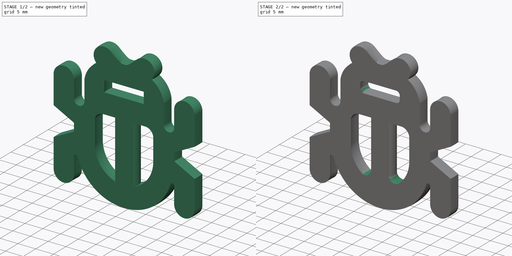
[diagram: build sequence overview — one tinted view per stage of 2, left to right]
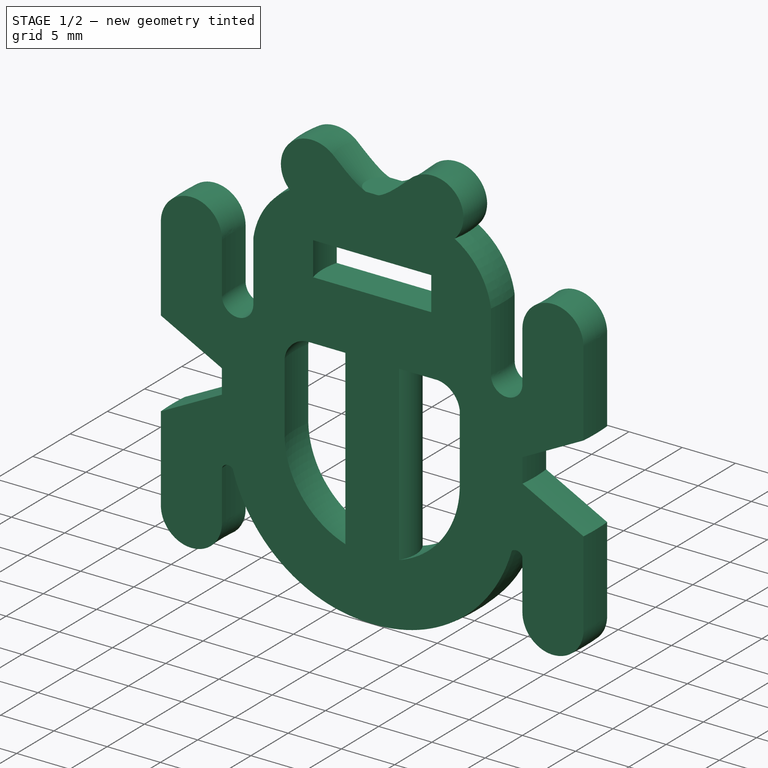
[diagram: stage 1 of 2 — iso view after this stage's code; geometry added in this stage tinted green]
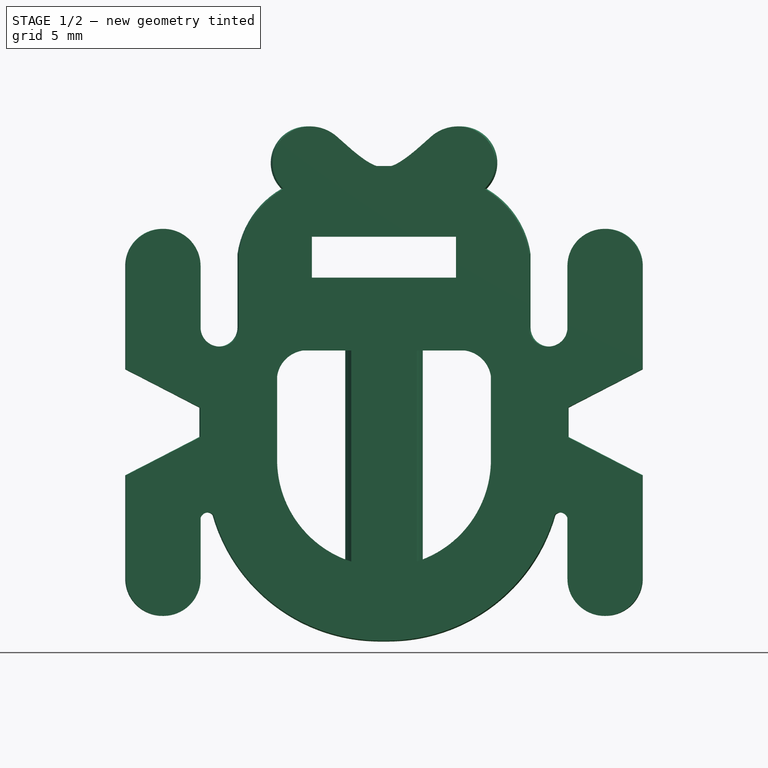
[diagram: stage 1 of 2 — front view after this stage's code; geometry added in this stage tinted green]
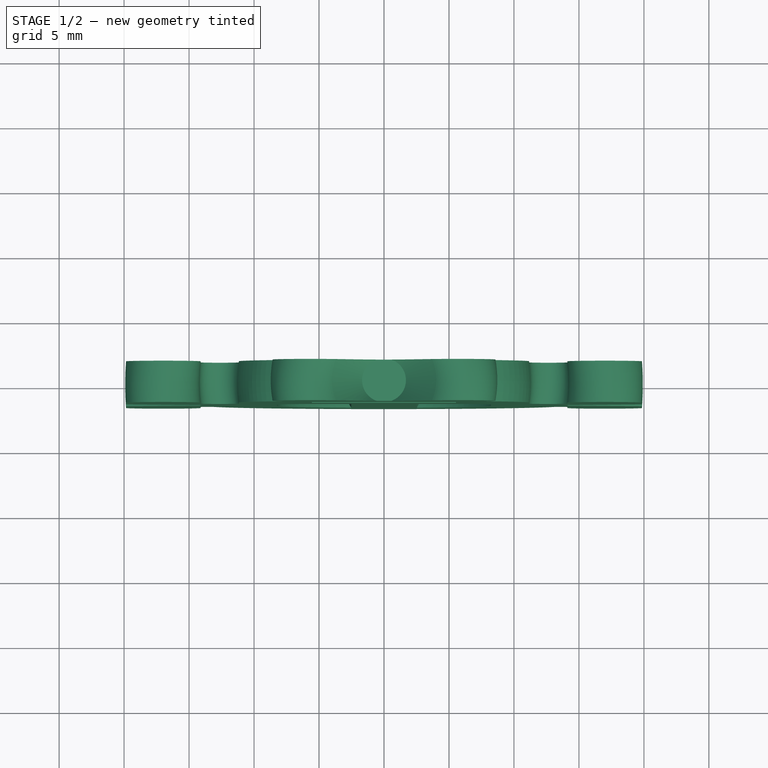
[diagram: stage 1 of 2 — top view after this stage's code; geometry added in this stage tinted green]
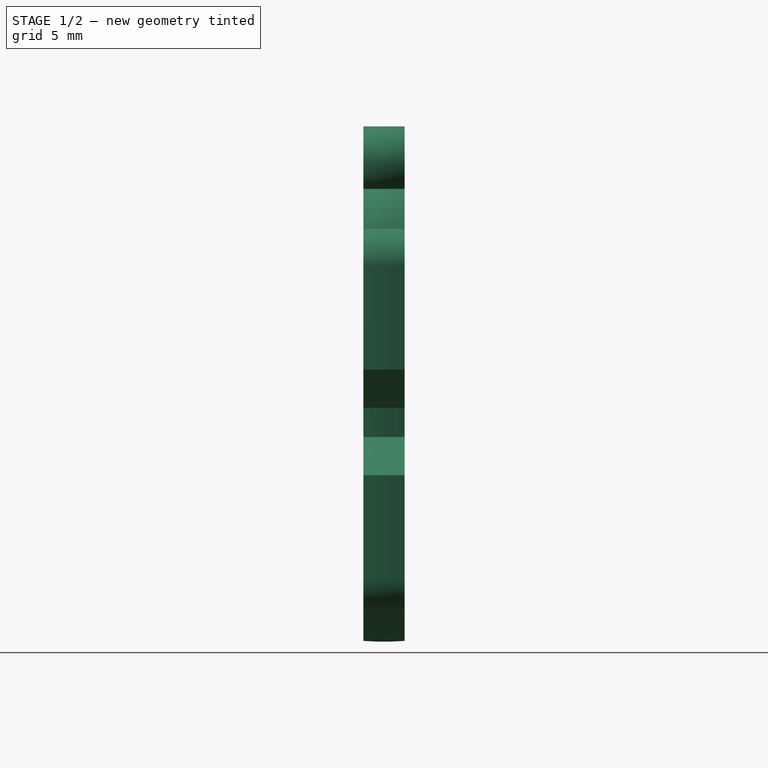
[diagram: stage 1 of 2 — right view after this stage's code; geometry added in this stage tinted green]
FCSTD DOCUMENT  (FreeCAD 0.20R27518 (Git))
Label: Software_Template
License: All rights reserved
LicenseURL: http://en.wikipedia.org/wiki/All_rights_reserved
objects: Sketcher::SketchObject×2, PartDesign::Fillet×2, TechDraw::DrawSVGTemplate×1, Image::ImagePlane×1, PartDesign::Revolution×1, PartDesign::Pocket×1, PartDesign::Body×1, TechDraw::DrawProjGroupItem×1, TechDraw::DrawProjGroup×1, TechDraw::DrawPage×1
note: 11 computed .brp shape members not serialized (recipe doc carries the construction recipe); baked Part::Feature solids carry a one-line shape summary decoded from their .brp

FEATURE [TechDraw::DrawSVGTemplate] Template
  EditableTexts = Designed_by_Name=Design by Joe; Drawing_number=21.12-7-gd9da197b; FC-Date=Feb 2022; FC-SC=1:1; FC-SH=1 of 1; FC-Title=Software Team Patch; Subtitle=Tidal Force Robotics; Weight=0.01
  Height = 210
  Orientation = 1
  Width = 297
FEATURE [Image::ImagePlane] ImagePlane
  Placement = pos=(0,0,0) rot=(-1,0,0;4.71239rad)
  XSize = 90.2998
  YSize = 90.2998
FEATURE [Sketcher::SketchObject] Sketch
  FullyConstrained = false
  MapMode = 5
  Placement = pos=(0,0,0) rot=(1,0,0;1.5708rad)
  Support = -> [XZ_Plane]
  sketch-geometry (28):
    g0: ArcOfCircle CenterX=6.06459 CenterY=0.44352 CenterZ=0 NormalX=0 NormalY=0 NormalZ=1 AngleXU=0 Radius=2.33175 StartAngle=0.139087 EndAngle=1.42458
    g1: ArcOfCircle CenterX=0 CenterY=-5.65904 CenterZ=0 NormalX=0 NormalY=0 NormalZ=1 AngleXU=0 Radius=8.37863 StartAngle=5.07587 EndAngle=6.24929
    g2: LineSegment StartX=8.37382 StartY=0.766791 StartZ=0 EndX=8.37382 EndY=-5.943 EndZ=0
    g3: LineSegment StartX=6.40431 StartY=2.75039 StartZ=0 EndX=2.97889 EndY=2.75039 EndZ=0
    g4: LineSegment StartX=2.97889 StartY=2.75039 StartZ=0 EndX=2.97889 EndY=-13.4902 EndZ=0
    g5: ArcOfCircle CenterX=5.9021 CenterY=17.1751 CenterZ=0 NormalX=0 NormalY=0 NormalZ=1 AngleXU=0 Radius=2.81597 StartAngle=5.50028 EndAngle=8.5819
    g6: ArcOfCircle CenterX=4.3918 CenterY=9.18333 CenterZ=0 NormalX=0 NormalY=0 NormalZ=1 AngleXU=0 Radius=6.95424 StartAngle=0.141717 EndAngle=1.04232
    g7: ArcOfCircle CenterX=17.0579 CenterY=9.25429 CenterZ=0 NormalX=0 NormalY=0 NormalZ=1 AngleXU=0 Radius=2.8546 StartAngle=3e-16 EndAngle=3.14159
    g8: ArcOfCircle CenterX=17.0579 CenterY=-14.8224 CenterZ=0 NormalX=0 NormalY=0 NormalZ=1 AngleXU=0 Radius=2.8546 StartAngle=3.14159 EndAngle=6.28319
    g9: ArcOfCircle CenterX=0.318846 CenterY=-6.26215 CenterZ=0 NormalX=0 NormalY=0 NormalZ=1 AngleXU=0 Radius=13.3884 StartAngle=4.68857 EndAngle=6.00645
    g10: LineSegment StartX=1.68761 StartY=16.9456 StartZ=0 EndX=4.0286 EndY=19.2774 EndZ=0
    g11: GeomPoint X=1.68761 Y=16.9456 Z=0
    g12: LineSegment StartX=0 StartY=16.9456 StartZ=0 EndX=1.68761 EndY=16.9456 EndZ=0
    g13: LineSegment StartX=0 StartY=16.9456 StartZ=0 EndX=7e-16 EndY=11.5042 EndZ=0
    g14: ArcOfCircle CenterX=13.6367 CenterY=-10.3132 CenterZ=0 NormalX=0 NormalY=0 NormalZ=1 AngleXU=0 Radius=0.589195 StartAngle=0.277634 EndAngle=2.41107
    g15: LineSegment StartX=14.2033 StartY=-10.1517 StartZ=0 EndX=14.2033 EndY=-14.8224 EndZ=0
    g16: LineSegment StartX=19.9125 StartY=-14.8224 StartZ=0 EndX=19.9125 EndY=-6.85076 EndZ=0
    g17: LineSegment StartX=14.207 StartY=-3.90445 StartZ=0 EndX=19.9125 EndY=-6.85076 EndZ=0
    g18: LineSegment StartX=14.207 StartY=-3.90445 StartZ=0 EndX=14.207 EndY=-1.65873 EndZ=0
    g19: LineSegment StartX=14.207 StartY=-1.65873 StartZ=0 EndX=19.9125 EndY=1.28757 EndZ=0
    g20: LineSegment StartX=19.9125 StartY=1.28757 StartZ=0 EndX=19.9125 EndY=9.25429 EndZ=0
    g21: LineSegment StartX=14.2033 StartY=9.25429 StartZ=0 EndX=14.2033 EndY=4.51501 EndZ=0
    g22: LineSegment StartX=11.2763 StartY=10.1656 StartZ=0 EndX=11.2763 EndY=4.51501 EndZ=0
    g23: LineSegment StartX=7e-16 StartY=11.5042 StartZ=0 EndX=5.76773 EndY=11.5042 EndZ=0
    g24: LineSegment StartX=5.76773 StartY=11.5042 StartZ=0 EndX=5.76773 EndY=8.35728 EndZ=0
    g25: LineSegment StartX=5.76773 StartY=8.35728 StartZ=0 EndX=9e-16 EndY=8.35728 EndZ=0
    g26: LineSegment StartX=1.2e-15 StartY=8.35728 StartZ=0 EndX=4e-15 EndY=-19.6467 EndZ=0
    g27: ArcOfCircle CenterX=12.7398 CenterY=4.51501 CenterZ=0 NormalX=0 NormalY=0 NormalZ=1 AngleXU=0 Radius=1.46349 StartAngle=3.14159 EndAngle=6.28319
  constraints (63):
    c: DistanceX(g0) = 6.40431
    c: DistanceY(g0) = 2.75039
    c: DistanceY(g0) = 0.766791
    c: DistanceY(g1) = -5.943
    c: DistanceX(g1) = 2.97889
    c: DistanceY(g1) = -13.4902
    c: Coincident(g3,g0)
    c: Horizontal(g3)
    c: Coincident(g4,g3)
    c: Coincident(g4,g1)
    c: Vertical(g4)
    c: Coincident(g0,g2)
    c: Vertical(g2)
    c: Coincident(g2,g1)
    c: DistanceX(g0) = 8.37382
    c: DistanceX(g0) = 6.06459
    c: PointOnObject(g1,g-2)
    c: Coincident(g6,g5)
    c: Coincident(g10,g5)
    c: Coincident(g11,g10)
    c: PointOnObject(g12,g-2)
    c: Coincident(g12,g10)
    c: Horizontal(g12)
    c: Coincident(g13,g12)
    c: PointOnObject(g26,g-2)
    c: Coincident(g9,g26)
    c: DistanceY(g9) = -19.6467
    c: DistanceX(g9) = 13.1978
    c: DistanceY(g9) = -9.92007
    c: Coincident(g14,g9)
    c: Coincident(g15,g14)
    c: Vertical(g15)
    c: DistanceX(g8) = 14.2033
    c: DistanceY(g8) = -14.8224
    c: Tangent(g15,g8) = -1.5708
    c: Vertical(g16)
    c: Coincident(g17,g16)
    c: Tangent(g16,g8) = -1.5708
    c: Coincident(g18,g17)
    c: Vertical(g18)
    c: Coincident(g19,g18)
    c: Coincident(g20,g19)
    c: Equal(g17,g19)
    c: Tangent(g16,g20)
    c: Tangent(g20,g7) = -1.5708
    c: Tangent(g21,g7) = -1.5708
    c: Tangent(g21,g15)
    c: Coincident(g22,g6)
    c: Vertical(g22)
    c: DistanceX(g6) = 11.2763
    c: DistanceY(g6) = 10.1656
    c: DistanceX(g6) = 4.3918
    c: DistanceY(g6) = 9.18333
    c: Horizontal(g23)
    c: Coincident(g24,g23)
    c: Vertical(g24)
    c: Coincident(g25,g24)
    c: Horizontal(g25)
    c: Coincident(g13,g23)
    c: Coincident(g26,g25)
    c: DistanceY(g21) = 4.51501
    c: Tangent(g27,g21) = 1.5708
    c: Tangent(g27,g22) = -1.5708
FEATURE [PartDesign::Revolution] Revolution
  Angle = 360
  Axis = (0,-2e-16,1)
  Base = (0,0,0)
  Placement = pos=(0,0,0) rot=(1,0,0;1.5708rad)
  Profile = -> Sketch
  ReferenceAxis = -> Sketch [V_Axis]
  Reversed = true
FEATURE [Sketcher::SketchObject] Sketch001
  FullyConstrained = false
  MapMode = 5
  Support = -> [XY_Plane]
  sketch-geometry (8):
    g0: LineSegment StartX=-34.737 StartY=1.5875 StartZ=0 EndX=43.8118 EndY=1.5875 EndZ=0
    g1: LineSegment StartX=43.8118 StartY=1.5875 StartZ=0 EndX=43.8118 EndY=23.0828 EndZ=0
    g2: LineSegment StartX=43.8118 StartY=23.0828 StartZ=0 EndX=-34.737 EndY=23.0828 EndZ=0
    g3: LineSegment StartX=-34.737 StartY=23.0828 StartZ=0 EndX=-34.737 EndY=1.5875 EndZ=0
    g4: LineSegment StartX=43.8118 StartY=-1.5875 StartZ=0 EndX=-34.737 EndY=-1.5875 EndZ=0
    g5: LineSegment StartX=-34.737 StartY=-1.5875 StartZ=0 EndX=-34.737 EndY=-23.0828 EndZ=0
    g6: LineSegment StartX=-34.737 StartY=-23.0828 StartZ=0 EndX=43.8118 EndY=-23.0828 EndZ=0
    g7: LineSegment StartX=43.8118 StartY=-23.0828 StartZ=0 EndX=43.8118 EndY=-1.5875 EndZ=0
  constraints (20):
    c: Coincident(g0,g1)
    c: Coincident(g1,g2)
    c: Coincident(g2,g3)
    c: Coincident(g3,g0)
    c: Horizontal(g0)
    c: Horizontal(g2)
    c: Vertical(g1)
    c: Vertical(g3)
    c: Coincident(g4,g5)
    c: Coincident(g5,g6)
    c: Coincident(g6,g7)
    c: Coincident(g7,g4)
    c: Horizontal(g4)
    c: Horizontal(g6)
    c: Vertical(g5)
    c: Vertical(g7)
    c: Symmetric(g0,g4,g-1)
    c: Equal(g0,g4)
    c: Equal(g3,g5)
    c: Distance(g0,g4) = 3.175
FEATURE [PartDesign::Pocket] Pocket
  BaseFeature = -> Revolution
  Direction = (0,0,-1)
  Length = 5.0038
  Length2 = 5.0038
  Midplane = true
  Placement = pos=(0,0,0) rot=(1,0,0;1.5708rad)
  Profile = -> Sketch001
  ReferenceAxis = -> Sketch001 [N_Axis]
  Type = 1
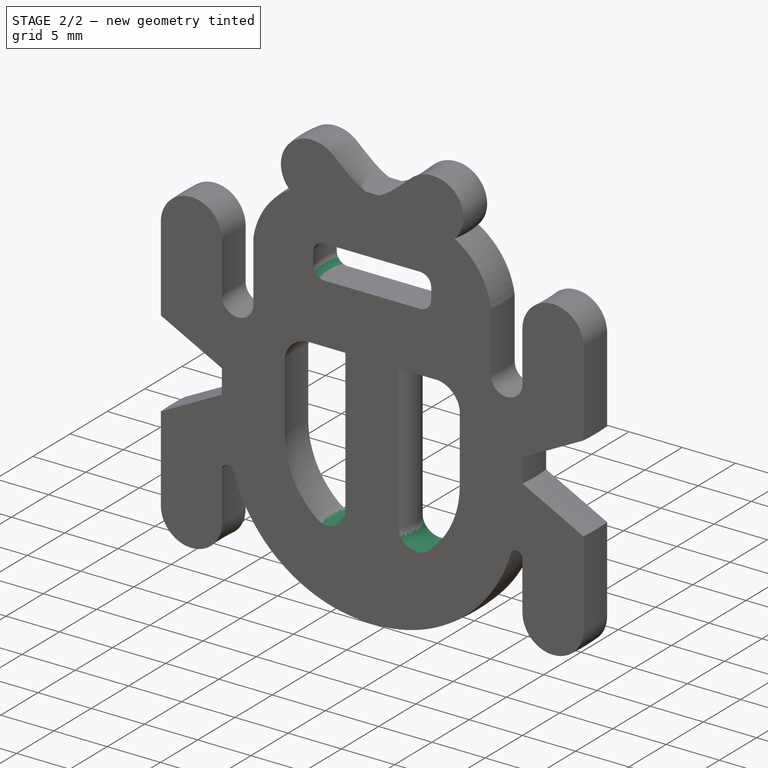
[diagram: stage 2 of 2 — iso view after this stage's code; geometry added in this stage tinted green]
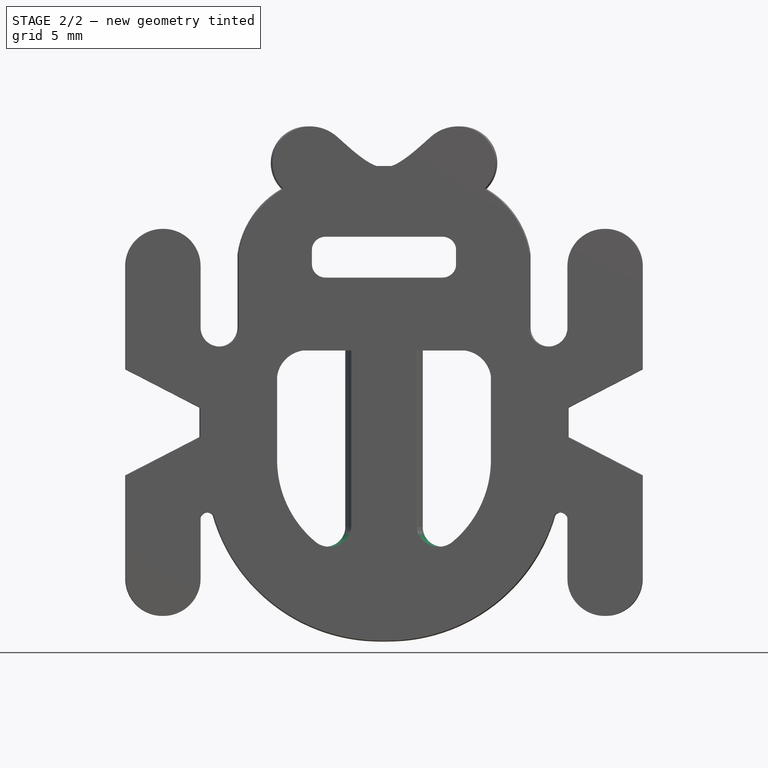
[diagram: stage 2 of 2 — front view after this stage's code; geometry added in this stage tinted green]
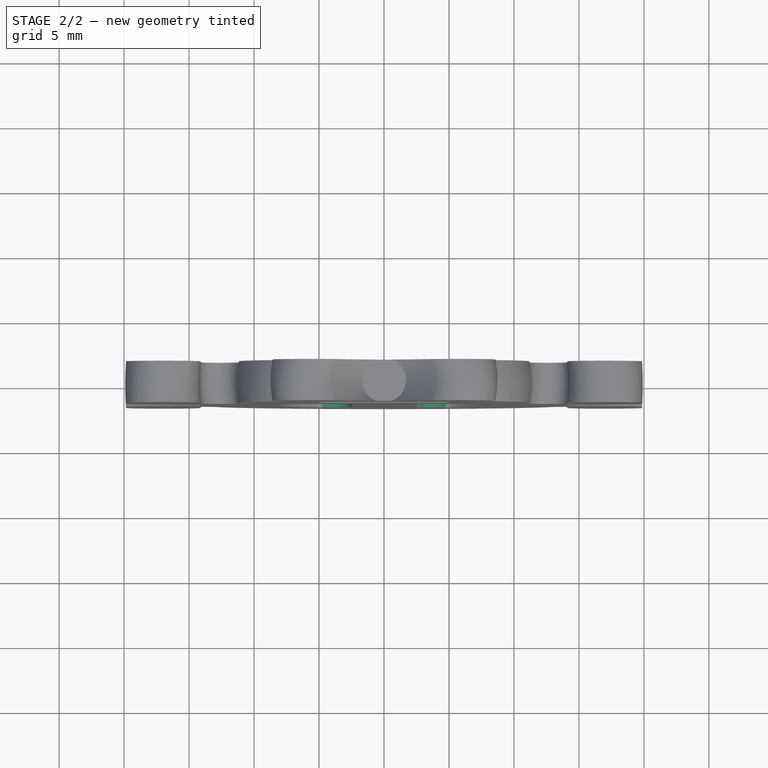
[diagram: stage 2 of 2 — top view after this stage's code; geometry added in this stage tinted green]
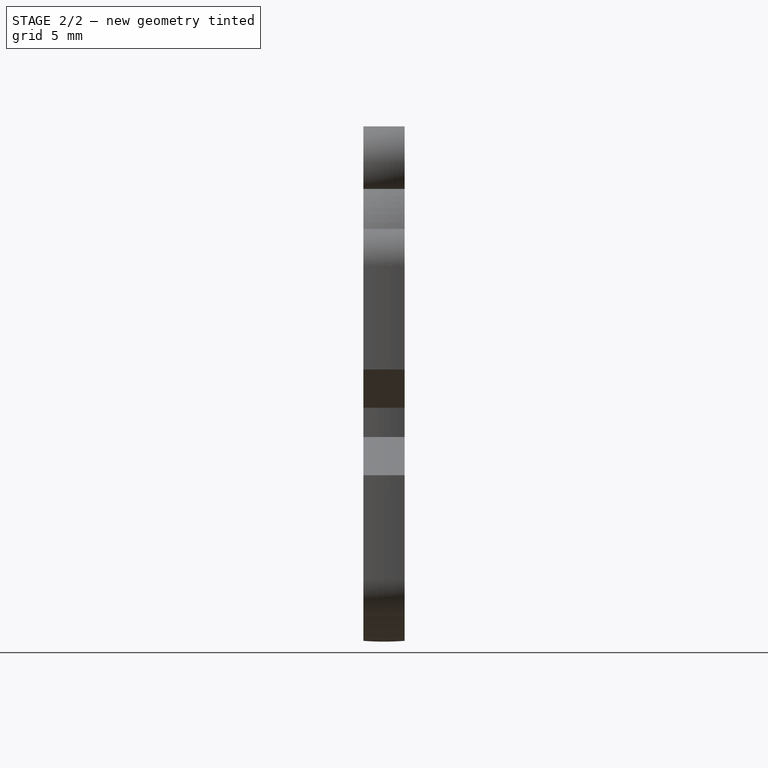
[diagram: stage 2 of 2 — right view after this stage's code; geometry added in this stage tinted green]
FEATURE [PartDesign::Fillet] Fillet
  Base = -> Pocket [Edge152,Edge162]
  BaseFeature = -> Pocket
  Placement = pos=(0,0,0) rot=(1,0,0;1.5708rad)
  Radius = 1.524
  SupportTransform = false
  UseAllEdges = false
FEATURE [PartDesign::Fillet] Fillet001
  Base = -> Fillet [Edge132,Edge136,Edge138,Edge133]
  BaseFeature = -> Fillet
  Placement = pos=(0,0,0) rot=(1,0,0;1.5708rad)
  Radius = 1.016
  SupportTransform = false
  UseAllEdges = false
FEATURE [PartDesign::Body] Body  label="Software Team Patch"
  Group = -> [Sketch,Revolution,Sketch001,Pocket,Fillet,Fillet001]
  Origin = -> Origin
  Tip = -> Fillet001
FEATURE [TechDraw::DrawProjGroupItem] ProjItem  label="Front"
  CoarseView = false
  Direction = (0,-1,0)
  Focus = 100
  HardHidden = false
  IsoCount = 0
  IsoHidden = false
  IsoVisible = false
  LockPosition = true
  Perspective = false
  Rotation = 0
  RotationVector = (1,0,0)
  ScaleType = 2
  SeamHidden = false
  SeamVisible = true
  SmoothHidden = false
  SmoothVisible = true
  Source = -> [Body]
  Type = 0
  X = 0
  XDirection = (1,0,0)
  Y = 0
FEATURE [TechDraw::DrawProjGroup] ProjGroup
  Anchor = -> ProjItem
  AutoDistribute = true
  LockPosition = false
  ProjectionType = 0
  Rotation = 0
  ScaleType = 0
  Source = -> [Body]
  Views = -> [ProjItem]
  X = 148.5
  Y = 105
  spacingX = 15.0114
  spacingY = 15.0114
FEATURE [TechDraw::DrawPage] Page
  KeepUpdated = true
  NextBalloonIndex = 1
  ProjectionType = 0
  Template = -> Template
  Views = -> [ProjGroup]
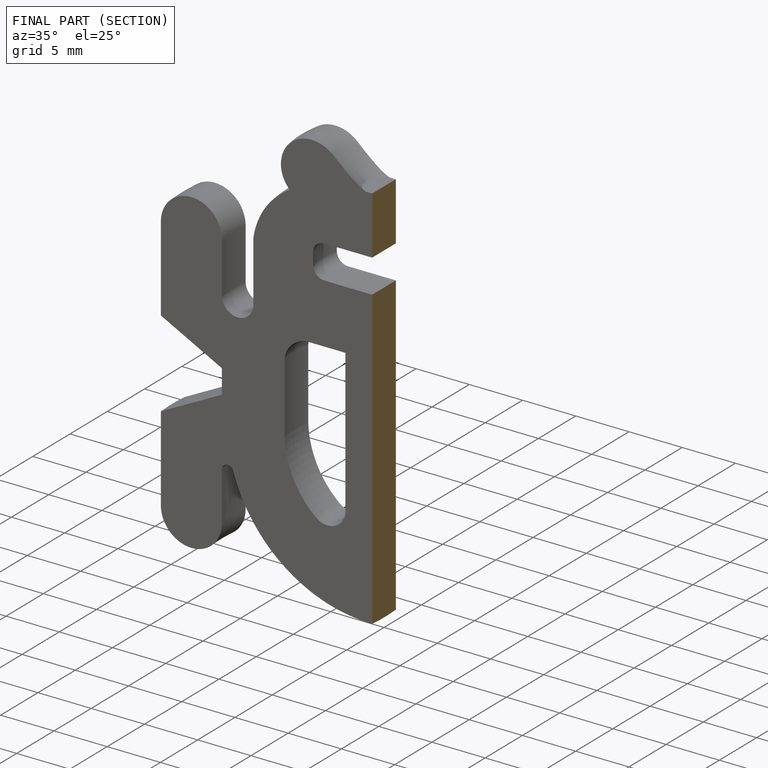
[diagram: finished part — half-section view (interior)]
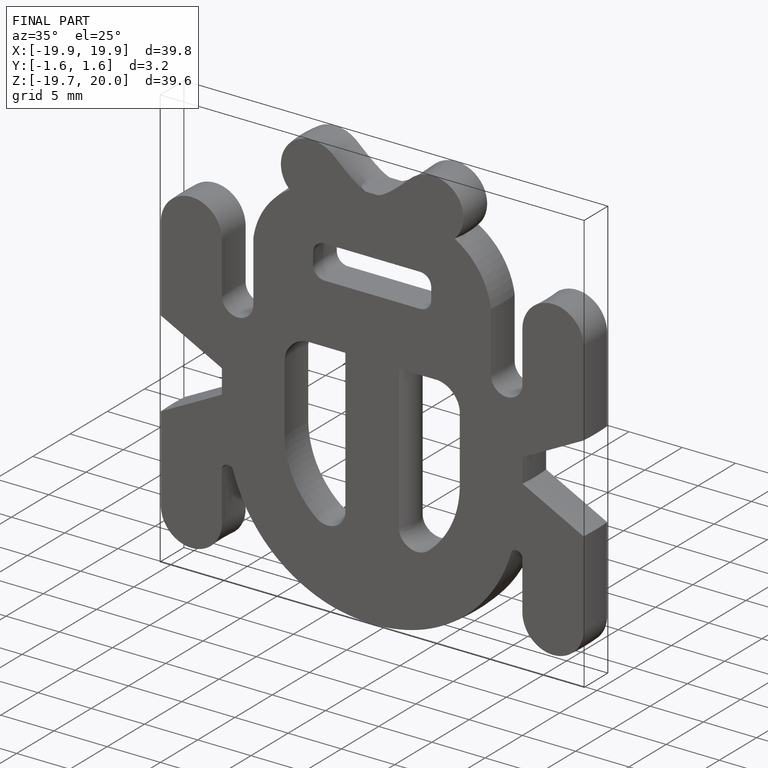
[diagram: finished part — iso view with bounding-box wireframe]
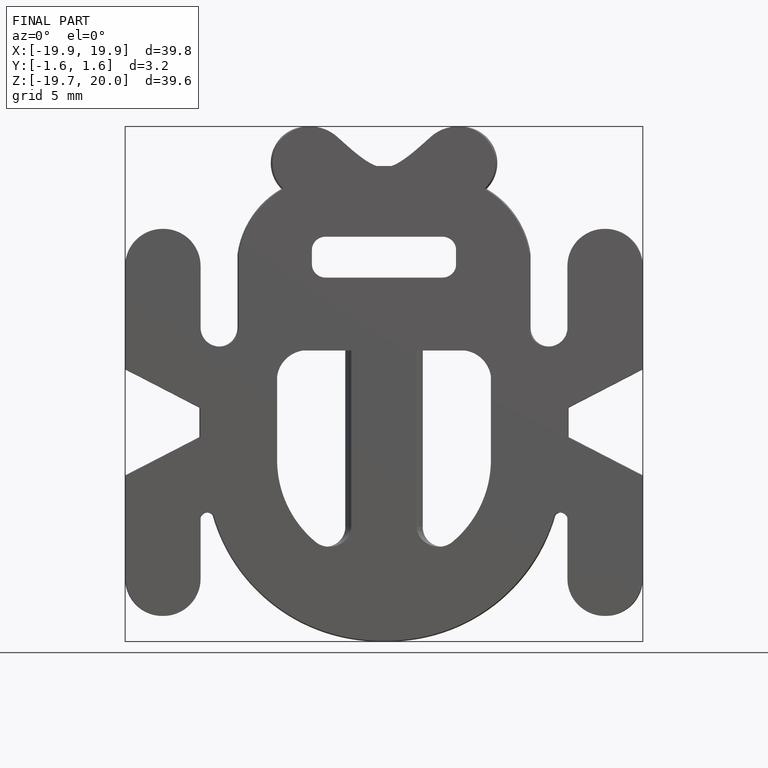
[diagram: finished part — front view with bounding-box wireframe]
